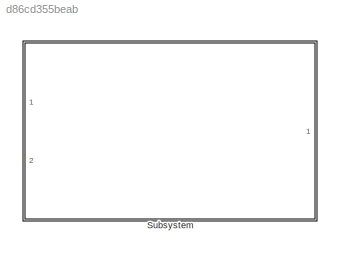
MODEL slx_d86cd355beab
KIND library
CONFIG AbsTol = auto
CONFIG EnableMultiTasking = off
CONFIG FixedStep = auto
CONFIG MaxStep = auto
CONFIG MinStep = auto
CONFIG RelTol = 1e-3
CONFIG SampleTimeConstraint = Unconstrained
CONFIG Solver = VariableStepAuto
CONFIG SolverName = VariableStepAuto
CONFIG StartTime = 0.0
CONFIG StopTime = 10.0
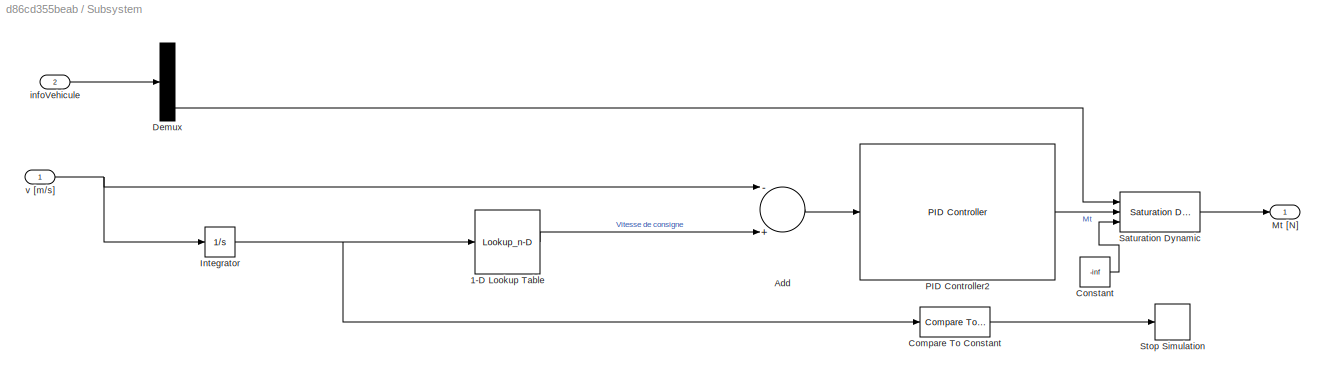
BLOCK [SubSystem] Subsystem
  Ports = [2, 1]
  RequestExecContextInheritance = off
BLOCK [Lookup_n-D] Subsystem/1-D Lookup Table
  BreakpointsForDimension1 = c_dist_int
  InternalRulePriority = Speed
  NumberOfTableDimensions = 1
  Ports = [1, 1]
  RndMeth = Simplest
  Table = vlim
BLOCK [Sum] Subsystem/Add
  InputSameDT = off
  Inputs = -+
  OutDataTypeStr = Inherit: Inherit via internal rule
  Ports = [2, 1]
  SaturateOnIntegerOverflow = off
BLOCK [Reference] Subsystem/Compare To Constant  REF=simulink/Logic and Bit
Operations/Compare
To Constant
  Ports = [1, 1]
  SourceBlock = simulink/Logic and Bit\nOperations/Compare\nTo Constant
  SourceProductBaseCode = SL
  SourceProductName = Simulink
  SourceType = Compare To Constant
BLOCK [Constant] Subsystem/Constant
  Value = -inf
BLOCK [Demux] Subsystem/Demux
  DisplayOption = bar
  Outputs = 5
  Ports = [1, 5]
BLOCK [Integrator] Subsystem/Integrator
  Ports = [1, 1]
BLOCK [Outport] Subsystem/Mt [N]
  IconDisplay = Port number
BLOCK [Reference] Subsystem/PID Controller2  REF=simulink/Continuous/PID Controller
  Ports = [1, 1]
  SourceBlock = simulink/Continuous/PID Controller
  SourceProductBaseCode = SL
  SourceProductName = Simulink
  SourceType = PID 1dof
BLOCK [Reference] Subsystem/Saturation Dynamic  REF=simulink/Discontinuities/Saturation
Dynamic
  Ports = [3, 1]
  SourceBlock = simulink/Discontinuities/Saturation\nDynamic
  SourceProductBaseCode = SL
  SourceProductName = Simulink
  SourceType = Saturation Dynamic
BLOCK [Stop] Subsystem/Stop Simulation
BLOCK [Inport] Subsystem/infoVehicule
  IconDisplay = Port number
  Port = 2
BLOCK [Inport] Subsystem/v [m//s]
  IconDisplay = Port number
LINE Subsystem/1-D Lookup Table:1 -> Subsystem/Add:2
LINE Subsystem/Add:1 -> Subsystem/PID Controller2:1
LINE Subsystem/Compare To Constant:1 -> Subsystem/Stop Simulation:1
LINE Subsystem/Constant:1 -> Subsystem/Saturation Dynamic:3
LINE Subsystem/Demux:5 -> Subsystem/Saturation Dynamic:1
NET Subsystem/Integrator:1 -> Subsystem/1-D Lookup Table:1, Subsystem/Compare To Constant:1
LINE Subsystem/PID Controller2:1 -> Subsystem/Saturation Dynamic:2
LINE Subsystem/Saturation Dynamic:1 -> Subsystem/Mt [N]:1
LINE Subsystem/infoVehicule:1 -> Subsystem/Demux:1
NET Subsystem/v [m//s]:1 -> Subsystem/Add:1, Subsystem/Integrator:1
note: NET lines group one-source signal fan-out (src -> all destinations, sorted); 1:1 wires keep LINE
